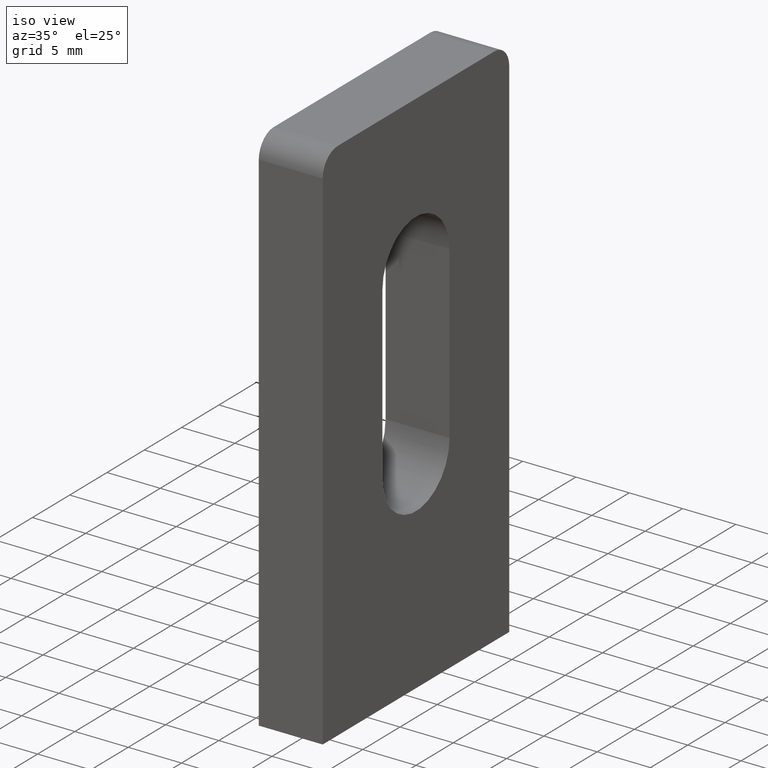
[diagram: clean part render]
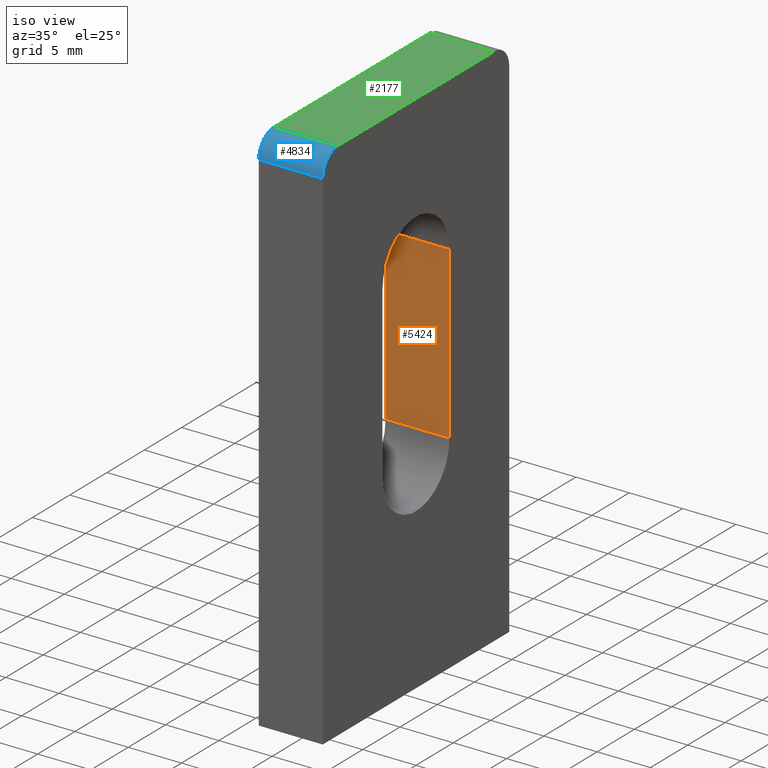
[diagram: same view with three faces highlighted in distinct colors, each labeled with its STEP entity id]
A machine part, iso view with three faces highlighted in distinct colors.
Their STEP definitions:

[orange] entity #5424 — the highlighted planar face has unit normal (0, 1, -0).
#272 = VERTEX_POINT ( 'NONE', #3084 ) ;
#492 = VERTEX_POINT ( 'NONE', #7284 ) ;
#1080 = CARTESIAN_POINT ( 'NONE',  ( 3.000000000000000000, 4.499999999999999112, 35.50000000000000711 ) ) ;
#1213 = LINE ( 'NONE', #2372, #4480 ) ;
#1503 = ORIENTED_EDGE ( 'NONE', *, *, #2934, .T. ) ;
#1889 = DIRECTION ( 'NONE',  ( 1.000000000000000000, -0.000000000000000000, -0.000000000000000000 ) ) ;
#2103 = EDGE_CURVE ( 'NONE', #492, #272, #1213, .T. ) ;
#2288 = FACE_OUTER_BOUND ( 'NONE', #8927, .T. ) ;
#2372 = CARTESIAN_POINT ( 'NONE',  ( -3.000000000000000000, 4.499999999999999112, 35.50000000000000711 ) ) ;
#2447 = AXIS2_PLACEMENT_3D ( 'NONE', #3732, #7756, #5662 ) ;
#2934 = EDGE_CURVE ( 'NONE', #492, #5382, #10195, .T. ) ;
#3084 = CARTESIAN_POINT ( 'NONE',  ( -3.000000000000000000, 4.499999999999999112, 35.50000000000000711 ) ) ;
#3549 = ORIENTED_EDGE ( 'NONE', *, *, #2103, .F. ) ;
#3732 = CARTESIAN_POINT ( 'NONE',  ( -3.000000000000000000, 4.499999999999999112, 35.50000000000000711 ) ) ;
#4480 = VECTOR ( 'NONE', #10358, 1000.000000000000000 ) ;
#4650 = CARTESIAN_POINT ( 'NONE',  ( 3.000000000000000000, 4.499999999999999112, 35.50000000000000711 ) ) ;
#4870 = CARTESIAN_POINT ( 'NONE',  ( -3.000000000000000000, 4.499999999999999112, 35.50000000000000711 ) ) ;
#5382 = VERTEX_POINT ( 'NONE', #7499 ) ;
#5424 = ADVANCED_FACE ( 'NONE', ( #2288 ), #10706, .F. ) ;
#5662 = DIRECTION ( 'NONE',  ( 0.000000000000000000, 5.421010862427517240E-17, 1.000000000000000000 ) ) ;
#5963 = LINE ( 'NONE', #4870, #8916 ) ;
#7284 = CARTESIAN_POINT ( 'NONE',  ( -3.000000000000000000, 4.499999999999998224, 19.49999999999998934 ) ) ;
#7492 = EDGE_CURVE ( 'NONE', #272, #10900, #5963, .T. ) ;
#7499 = CARTESIAN_POINT ( 'NONE',  ( 3.000000000000000000, 4.499999999999998224, 19.49999999999998934 ) ) ;
#7756 = DIRECTION ( 'NONE',  ( 0.000000000000000000, 1.000000000000000000, -5.421010862427517240E-17 ) ) ;
#7903 = CARTESIAN_POINT ( 'NONE',  ( -3.000000000000000000, 4.499999999999998224, 19.49999999999998934 ) ) ;
#7987 = DIRECTION ( 'NONE',  ( 1.000000000000000000, -0.000000000000000000, -0.000000000000000000 ) ) ;
#8916 = VECTOR ( 'NONE', #1889, 1000.000000000000000 ) ;
#8927 = EDGE_LOOP ( 'NONE', ( #9793, #12441, #3549, #1503 ) ) ;
#9230 = VECTOR ( 'NONE', #12645, 1000.000000000000000 ) ;
#9793 = ORIENTED_EDGE ( 'NONE', *, *, #12071, .T. ) ;
#10195 = LINE ( 'NONE', #7903, #12197 ) ;
#10358 = DIRECTION ( 'NONE',  ( -0.000000000000000000, 5.421010862427517240E-17, 1.000000000000000000 ) ) ;
#10706 = PLANE ( 'NONE',  #2447 ) ;
#10900 = VERTEX_POINT ( 'NONE', #1080 ) ;
#10946 = LINE ( 'NONE', #4650, #9230 ) ;
#12071 = EDGE_CURVE ( 'NONE', #5382, #10900, #10946, .T. ) ;
#12197 = VECTOR ( 'NONE', #7987, 1000.000000000000000 ) ;
#12441 = ORIENTED_EDGE ( 'NONE', *, *, #7492, .F. ) ;
#12645 = DIRECTION ( 'NONE',  ( -0.000000000000000000, 5.421010862427517240E-17, 1.000000000000000000 ) ) ;

[blue] entity #4834 — the highlighted cylindrical surface (edge-blend (fillet) strip) has radius 2 mm, axis along (-1, 0, 0).
#1232 = DIRECTION ( 'NONE',  ( 1.000000000000000000, -0.000000000000000000, -0.000000000000000000 ) ) ;
#1590 = ORIENTED_EDGE ( 'NONE', *, *, #3001, .F. ) ;
#1645 = VECTOR ( 'NONE', #4972, 1000.000000000000000 ) ;
#1793 = CARTESIAN_POINT ( 'NONE',  ( 3.000000000000000000, -10.50000000000000000, 48.00000000000000000 ) ) ;
#2267 = AXIS2_PLACEMENT_3D ( 'NONE', #10438, #4501, #9342 ) ;
#2296 = EDGE_LOOP ( 'NONE', ( #10824, #1590, #9317, #7132 ) ) ;
#2428 = LINE ( 'NONE', #7888, #1645 ) ;
#2455 = CYLINDRICAL_SURFACE ( 'NONE', #6339, 2.000000000000001776 ) ;
#2721 = CIRCLE ( 'NONE', #12178, 2.000000000000001776 ) ;
#2832 = DIRECTION ( 'NONE',  ( -1.000000000000000000, 0.000000000000000000, 0.000000000000000000 ) ) ;
#3001 = EDGE_CURVE ( 'NONE', #7147, #7517, #4292, .T. ) ;
#3443 = EDGE_CURVE ( 'NONE', #11680, #4473, #2428, .T. ) ;
#4292 = LINE ( 'NONE', #7196, #11434 ) ;
#4315 = FACE_OUTER_BOUND ( 'NONE', #2296, .T. ) ;
#4473 = VERTEX_POINT ( 'NONE', #8296 ) ;
#4501 = DIRECTION ( 'NONE',  ( 1.000000000000000000, 0.000000000000000000, 0.000000000000000000 ) ) ;
#4834 = ADVANCED_FACE ( 'NONE', ( #4315 ), #2455, .T. ) ;
#4876 = CARTESIAN_POINT ( 'NONE',  ( -3.000000000000000000, -10.50000000000000000, 50.00000000000000000 ) ) ;
#4972 = DIRECTION ( 'NONE',  ( -1.000000000000000000, 0.000000000000000000, 0.000000000000000000 ) ) ;
#5980 = EDGE_CURVE ( 'NONE', #7517, #11680, #8337, .T. ) ;
#6339 = AXIS2_PLACEMENT_3D ( 'NONE', #1793, #2832, #9770 ) ;
#7132 = ORIENTED_EDGE ( 'NONE', *, *, #3443, .F. ) ;
#7147 = VERTEX_POINT ( 'NONE', #4876 ) ;
#7196 = CARTESIAN_POINT ( 'NONE',  ( 3.000000000000000000, -10.50000000000000000, 50.00000000000000000 ) ) ;
#7517 = VERTEX_POINT ( 'NONE', #11932 ) ;
#7888 = CARTESIAN_POINT ( 'NONE',  ( 3.000000000000000000, -12.50000000000000000, 48.00000000000000000 ) ) ;
#8296 = CARTESIAN_POINT ( 'NONE',  ( -3.000000000000000000, -12.50000000000000000, 48.00000000000000000 ) ) ;
#8337 = CIRCLE ( 'NONE', #2267, 2.000000000000001776 ) ;
#8345 = DIRECTION ( 'NONE',  ( -1.000000000000000000, -0.000000000000000000, -0.000000000000000000 ) ) ;
#9317 = ORIENTED_EDGE ( 'NONE', *, *, #11893, .F. ) ;
#9342 = DIRECTION ( 'NONE',  ( 0.000000000000000000, 0.000000000000000000, 1.000000000000000000 ) ) ;
#9471 = CARTESIAN_POINT ( 'NONE',  ( 3.000000000000000000, -12.50000000000000000, 48.00000000000000000 ) ) ;
#9770 = DIRECTION ( 'NONE',  ( 0.000000000000000000, 0.000000000000000000, 1.000000000000000000 ) ) ;
#10438 = CARTESIAN_POINT ( 'NONE',  ( 3.000000000000000000, -10.50000000000000000, 48.00000000000000000 ) ) ;
#10824 = ORIENTED_EDGE ( 'NONE', *, *, #5980, .F. ) ;
#11434 = VECTOR ( 'NONE', #1232, 1000.000000000000000 ) ;
#11680 = VERTEX_POINT ( 'NONE', #9471 ) ;
#11893 = EDGE_CURVE ( 'NONE', #4473, #7147, #2721, .T. ) ;
#11932 = CARTESIAN_POINT ( 'NONE',  ( 3.000000000000000000, -10.50000000000000000, 50.00000000000000000 ) ) ;
#12178 = AXIS2_PLACEMENT_3D ( 'NONE', #12449, #8345, #12367 ) ;
#12367 = DIRECTION ( 'NONE',  ( 0.000000000000000000, 0.000000000000000000, 1.000000000000000000 ) ) ;
#12449 = CARTESIAN_POINT ( 'NONE',  ( -3.000000000000000000, -10.50000000000000000, 48.00000000000000000 ) ) ;

[green] entity #2177 — the highlighted planar face has unit normal (0, 0, -1).
#193 = CARTESIAN_POINT ( 'NONE',  ( 3.000000000000000000, 10.49999999999999822, 50.00000000000000000 ) ) ;
#1055 = LINE ( 'NONE', #193, #4475 ) ;
#1232 = DIRECTION ( 'NONE',  ( 1.000000000000000000, -0.000000000000000000, -0.000000000000000000 ) ) ;
#1530 = CARTESIAN_POINT ( 'NONE',  ( 3.000000000000000000, -12.50000000000000000, 50.00000000000000000 ) ) ;
#1621 = LINE ( 'NONE', #1530, #11838 ) ;
#2177 = ADVANCED_FACE ( 'NONE', ( #6492 ), #12162, .F. ) ;
#2552 = VECTOR ( 'NONE', #12092, 1000.000000000000000 ) ;
#3001 = EDGE_CURVE ( 'NONE', #7147, #7517, #4292, .T. ) ;
#3284 = VERTEX_POINT ( 'NONE', #10586 ) ;
#4292 = LINE ( 'NONE', #7196, #11434 ) ;
#4475 = VECTOR ( 'NONE', #11027, 1000.000000000000000 ) ;
#4876 = CARTESIAN_POINT ( 'NONE',  ( -3.000000000000000000, -10.50000000000000000, 50.00000000000000000 ) ) ;
#4968 = ORIENTED_EDGE ( 'NONE', *, *, #3001, .T. ) ;
#5079 = EDGE_CURVE ( 'NONE', #3284, #11741, #1055, .T. ) ;
#5219 = DIRECTION ( 'NONE',  ( -1.000000000000000000, 0.000000000000000000, -0.000000000000000000 ) ) ;
#5976 = CARTESIAN_POINT ( 'NONE',  ( -3.000000000000000000, -12.50000000000000000, 50.00000000000000000 ) ) ;
#6468 = DIRECTION ( 'NONE',  ( -0.000000000000000000, -1.000000000000000000, -0.000000000000000000 ) ) ;
#6492 = FACE_OUTER_BOUND ( 'NONE', #10435, .T. ) ;
#7147 = VERTEX_POINT ( 'NONE', #4876 ) ;
#7196 = CARTESIAN_POINT ( 'NONE',  ( 3.000000000000000000, -10.50000000000000000, 50.00000000000000000 ) ) ;
#7517 = VERTEX_POINT ( 'NONE', #11932 ) ;
#8672 = EDGE_CURVE ( 'NONE', #11741, #7147, #11232, .T. ) ;
#8823 = EDGE_CURVE ( 'NONE', #3284, #7517, #1621, .T. ) ;
#10228 = CARTESIAN_POINT ( 'NONE',  ( 3.000000000000000000, -12.50000000000000000, 50.00000000000000000 ) ) ;
#10435 = EDGE_LOOP ( 'NONE', ( #10948, #4968, #10588, #12094 ) ) ;
#10586 = CARTESIAN_POINT ( 'NONE',  ( 3.000000000000000000, 10.49999999999999822, 50.00000000000000000 ) ) ;
#10588 = ORIENTED_EDGE ( 'NONE', *, *, #8823, .F. ) ;
#10948 = ORIENTED_EDGE ( 'NONE', *, *, #8672, .T. ) ;
#11027 = DIRECTION ( 'NONE',  ( -1.000000000000000000, 0.000000000000000000, 0.000000000000000000 ) ) ;
#11232 = LINE ( 'NONE', #5976, #2552 ) ;
#11434 = VECTOR ( 'NONE', #1232, 1000.000000000000000 ) ;
#11568 = AXIS2_PLACEMENT_3D ( 'NONE', #10228, #12254, #5219 ) ;
#11741 = VERTEX_POINT ( 'NONE', #12834 ) ;
#11838 = VECTOR ( 'NONE', #6468, 1000.000000000000000 ) ;
#11932 = CARTESIAN_POINT ( 'NONE',  ( 3.000000000000000000, -10.50000000000000000, 50.00000000000000000 ) ) ;
#12092 = DIRECTION ( 'NONE',  ( -0.000000000000000000, -1.000000000000000000, -0.000000000000000000 ) ) ;
#12094 = ORIENTED_EDGE ( 'NONE', *, *, #5079, .T. ) ;
#12162 = PLANE ( 'NONE',  #11568 ) ;
#12254 = DIRECTION ( 'NONE',  ( 0.000000000000000000, 0.000000000000000000, -1.000000000000000000 ) ) ;
#12834 = CARTESIAN_POINT ( 'NONE',  ( -3.000000000000000000, 10.49999999999999822, 50.00000000000000000 ) ) ;